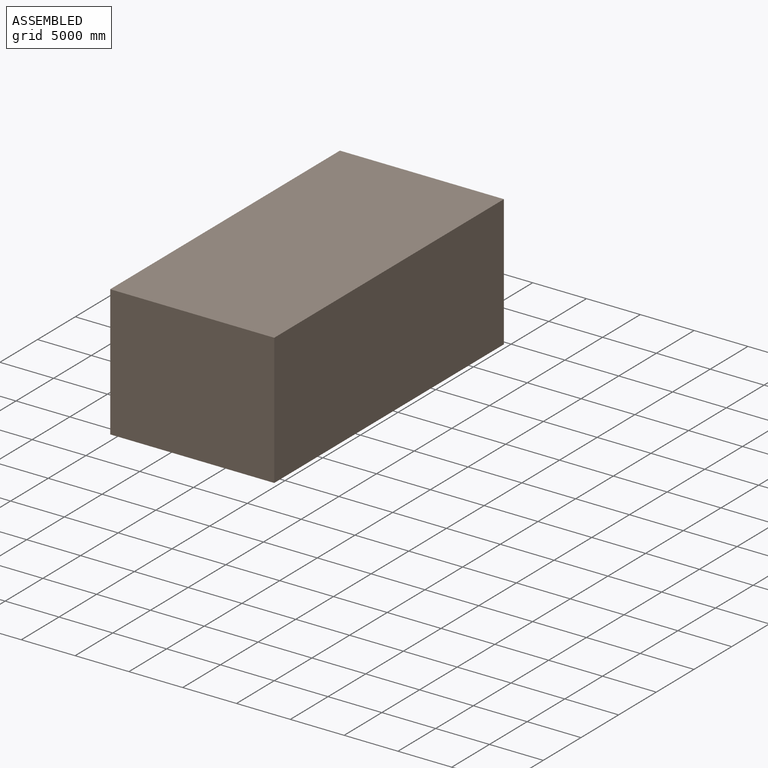
[diagram: assembled view]
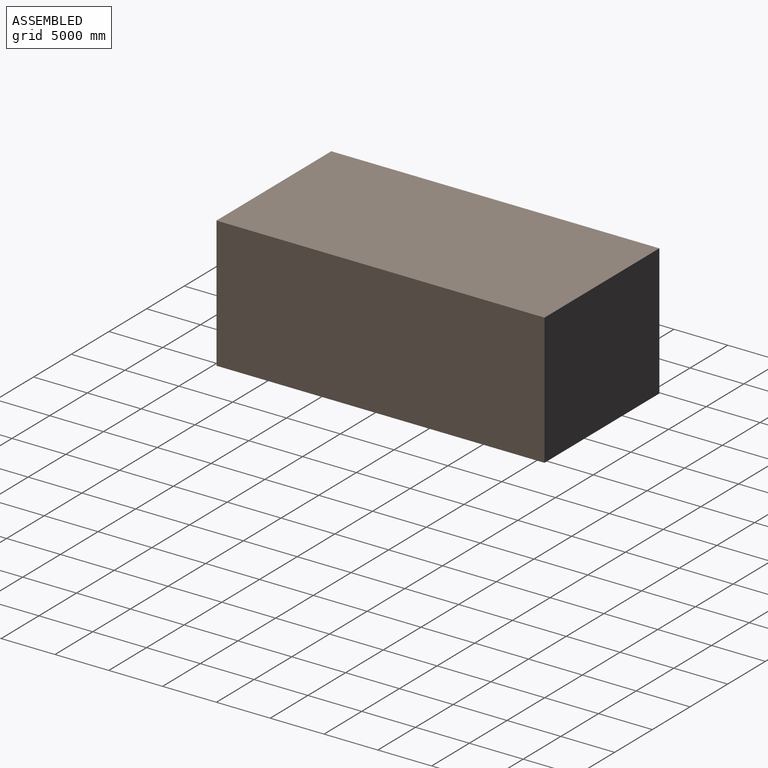
[diagram: assembled view, second angle]
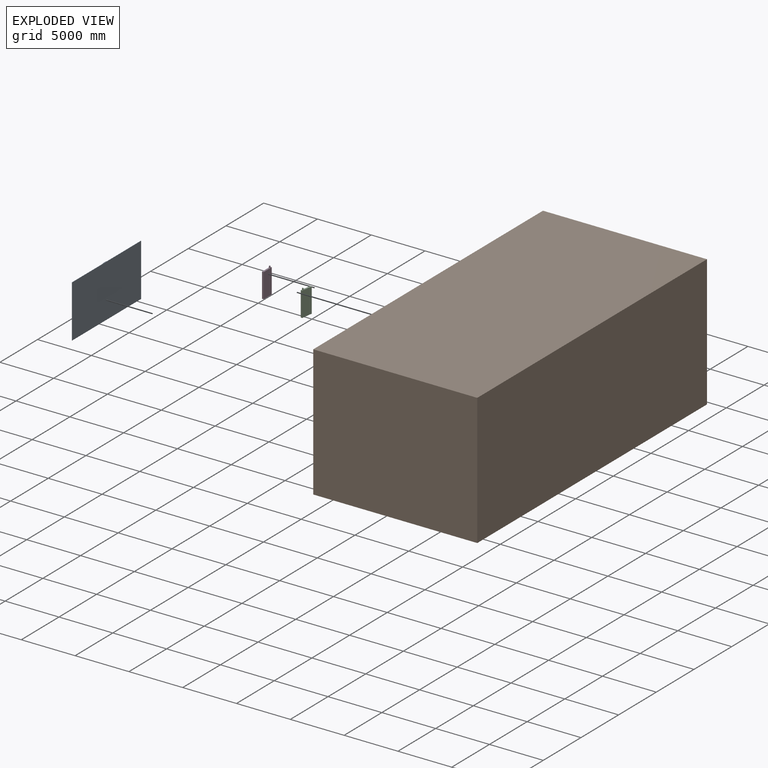
[diagram: exploded view]
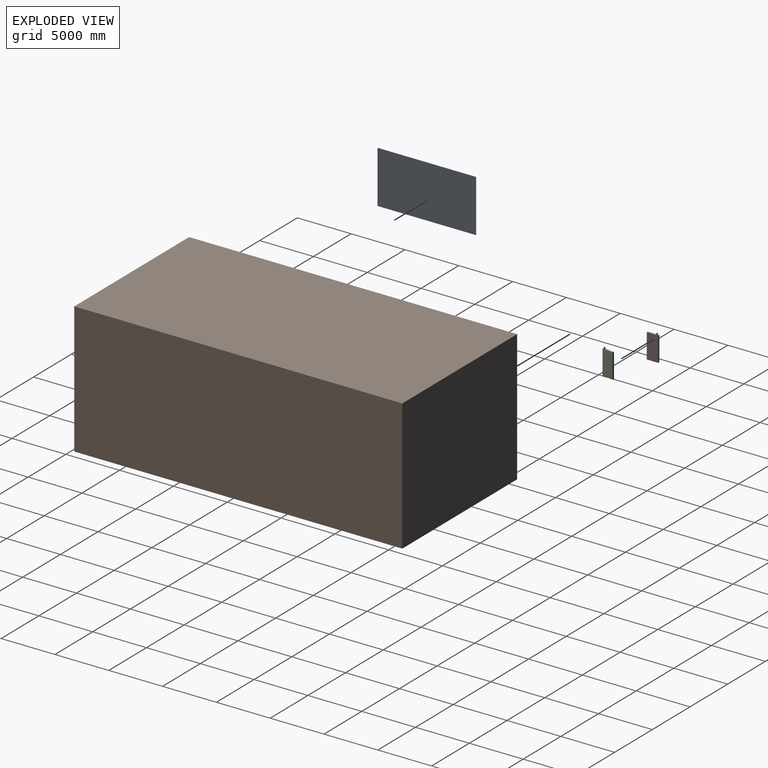
[diagram: exploded view, second angle]
ASSEMBLY  parts=4 mates=3
PART A: 34 faces, bbox 9144x182.9x4876.8 mm
  f0: plane 3048x152.4mm, normal (0,0,-1), area 464515.2mm2, adj f1,f2,f3
  f1: cylinder r=1524mm len=3048mm, axis (0,1,0), area 729658.8mm2, adj f0,f2,f3
  f2: plane 3048x1524mm, normal (0,-1,0), area 3648293.8mm2, adj f0,f1
  f3: plane 9144x4876.8mm, normal (0,-1,0), area 34975994.1mm2, adj f0,f1,f4,f5,f6,f7,f9,f10
  f4: plane 457.2x152.4mm, normal (0,0,-1), area 69677.3mm2, adj f3,f5,f7,f8
  f5: plane 2590.8x152.4mm, normal (1,0,0), area 394837.9mm2, adj f3,f4,f6,f8
  f6: plane 457.2x152.4mm, normal (0,0,1), area 69677.3mm2, adj f3,f5,f7,f8
  f7: plane 2590.8x152.4mm, normal (-1,0,0), area 394837.9mm2, adj f3,f4,f6,f8
  f8: plane 2590.8x457.2mm, normal (0,-1,0), area 1184513.8mm2, adj f4,f5,f6,f7
  f9: plane 2085.1x1537.72mm, normal (-0.8,0,0.59), area 394837.9mm2, adj f3,f10,f12,f13
  f10: plane 367.96x271.36mm, normal (-0.59,0,-0.8), area 69677.3mm2, adj f3,f9,f11,f13
  f11: plane 2085.1x1537.72mm, normal (0.8,0,-0.59), area 394837.9mm2, adj f3,f10,f12,f13
  f12: plane 367.96x271.36mm, normal (0.59,0,0.8), area 69677.3mm2, adj f3,f9,f11,f13
  f13: plane 2356.47x1905.68mm, normal (0,-1,0), area 1184513.8mm2, adj f9,f10,f11,f12
  f14: plane 1884x1778.42mm, normal (-0.73,0,-0.69), area 394837.9mm2, adj f3,f15,f17,f18
  f15: plane 332.47x313.84mm, normal (0.69,0,-0.73), area 69677.3mm2, adj f3,f14,f16,f18
  f16: plane 1884x1778.42mm, normal (0.73,0,0.69), area 394837.9mm2, adj f3,f15,f17,f18
  f17: plane 332.47x313.84mm, normal (-0.69,0,0.73), area 69677.3mm2, adj f3,f14,f16,f18
  f18: plane 2197.84x2110.89mm, normal (0,-1,0), area 1184513.8mm2, adj f14,f15,f16,f17
  f19: plane 2376.55x1031.62mm, normal (-0.4,0,-0.92), area 394837.9mm2, adj f3,f20,f22,f23
  f20: plane 419.39x182.05mm, normal (0.92,0,-0.4), area 69677.3mm2, adj f3,f19,f21,f23
  f21: plane 2376.55x1031.62mm, normal (0.4,0,0.92), area 394837.9mm2, adj f3,f20,f22,f23
  f22: plane 419.39x182.05mm, normal (-0.92,0,0.4), area 69677.3mm2, adj f3,f19,f21,f23
  f23: plane 2558.6x1451.01mm, normal (0,-1,0), area 1184513.8mm2, adj f19,f20,f21,f22
  f24: plane 2315.44x1162.32mm, normal (-0.45,0,0.89), area 394837.9mm2, adj f3,f25,f27,f28
  f25: plane 424.68x213.19mm, normal (-0.89,0,-0.45), area 72418.6mm2, adj f3,f24,f26,f28
  f26: plane 2315.44x1162.32mm, normal (0.45,0,-0.89), area 394837.9mm2, adj f3,f25,f27,f28
  f27: plane 424.68x213.19mm, normal (0.89,0,0.45), area 72418.6mm2, adj f3,f24,f26,f28
  f28: plane 2528.62x1587.01mm, normal (0,-1,0), area 1231116.3mm2, adj f24,f25,f26,f27
  f29: plane 9144x30.48mm, normal (0,0,1), area 278709.1mm2, adj f3,f30,f32,f33
  f30: plane 4876.8x30.48mm, normal (1,0,0), area 148644.9mm2, adj f3,f29,f31,f33
  f31: plane 9144x30.48mm, normal (0,0,-1), area 278709.1mm2, adj f3,f30,f32,f33
  f32: plane 4876.8x30.48mm, normal (-1,0,0), area 148644.9mm2, adj f3,f29,f31,f33
  f33: plane 9144x4876.8mm, normal (0,1,0), area 44593459.2mm2, adj f29,f30,f31,f32
PART B: 24 faces, bbox 15270.5x30480x12192 mm
  f0: plane 14935.2x11887.2mm, normal (0,-1,0), area 177537709.4mm2, adj f2,f9,f10,f14
  f1: plane 14935.2x11887.2mm, normal (0,1,0), area 177537709.4mm2, adj f2,f9,f10,f14
  f2: plane 30175.2x14935.2mm, normal (0,0,-1), area 450672647mm2, adj f0,f1,f9,f14
  f3: plane 30480x12192mm, normal (-1,0,0), area 324928382.4mm2, adj f5,f6,f7,f8,f10,f11,f12,f13
  f4: plane 30480x12192mm, normal (1,0,0), area 371612160mm2, adj f5,f6,f7,f8
  f5: plane 15240x12192mm, normal (0,1,0), area 185806080mm2, adj f3,f4,f7,f8
  f6: plane 15240x12192mm, normal (0,-1,0), area 185806080mm2, adj f3,f4,f7,f8
  f7: plane 30480x15240mm, normal (0,0,1), area 464515200mm2, adj f3,f4,f5,f6
  f8: plane 30480x15240mm, normal (0,0,-1), area 464515200mm2, adj f3,f4,f5,f6
  f9: plane 30175.2x11887.2mm, normal (-1,0,0), area 358698637.4mm2, adj f0,f1,f2,f10
  f10: plane 30175.2x15087.6mm, normal (0,0,1), area 450997807.7mm2, adj f0,f1,f3,f9,f11,f13,f14
  f11: plane 2286x152.4mm, normal (0,-1,0), area 348386.4mm2, adj f3,f10,f12,f14
  f12: plane 2133.6x152.4mm, normal (0,0,-1), area 301811.6mm2, adj f3,f11,f13,f14,f20,f22
  f13: plane 2286x152.4mm, normal (0,1,0), area 348386.4mm2, adj f3,f10,f12,f14
  f14: plane 30175.2x11887.2mm, normal (1,0,0), area 353821227.8mm2, adj f0,f1,f2,f10,f11,f12,f13
  f15: plane 4572x30.48mm, normal (0,-1,0), area 139354.6mm2, adj f3,f16,f18,f19
  f16: plane 9144x30.48mm, normal (0,0,1), area 278709.1mm2, adj f3,f15,f17,f19
  f17: plane 4572x30.48mm, normal (0,1,0), area 139354.6mm2, adj f3,f16,f18,f19
  f18: plane 9144x30.48mm, normal (0,0,-1), area 278709.1mm2, adj f3,f15,f17,f19
  f19: plane 9144x4572mm, normal (-1,0,0), area 41806368mm2, adj f15,f16,f17,f18
  f20: cylinder r=60.96mm len=152.4mm, axis (0,0,-1), area 58372.7mm2, adj f12,f21
  f21: plane 121.92x121.92mm, normal (0,0,-1), area 11674.5mm2, adj f20
  f22: cylinder r=60.96mm len=152.4mm, axis (0,0,-1), area 58372.7mm2, adj f12,f23
  f23: plane 121.92x121.92mm, normal (0,0,-1), area 11674.5mm2, adj f22
PART C: 16 faces, bbox 182.9x1066.8x2438.4 mm
  f0: plane 152.4x30.48mm, normal (0,-1,0), area 2415.5mm2, adj f1,f9,f11,f12,f13,f14,f15
  f1: plane 2286x1066.8mm, normal (-1,0,0), area 2437311.3mm2, adj f0,f2,f4,f5,f6,f9,f10,f11
  f2: plane 2286x152.4mm, normal (0,1,0), area 348386.4mm2, adj f1,f3,f5,f6
  f3: plane 2286x1066.8mm, normal (1,0,0), area 2438704.8mm2, adj f2,f4,f5,f6
  f4: plane 2286x152.4mm, normal (0,-1,0), area 348386.4mm2, adj f1,f3,f5,f6
  f5: plane 1066.8x152.4mm, normal (0,0,-1), area 162580.3mm2, adj f1,f2,f3,f4
  f6: plane 1066.8x152.4mm, normal (0,0,1), area 150905.8mm2, adj f1,f2,f3,f4,f7
  f7: cylinder r=60.96mm len=152.4mm, axis (0,0,1), area 58372.7mm2, adj f6,f8
  f8: plane 121.92x121.92mm, normal (0,0,1), area 11674.5mm2, adj f7
  f9: plane 45.72x30.48mm, normal (0,0,1), area 1393.5mm2, adj f0,f1,f10,f12
  f10: plane 152.4x30.48mm, normal (0,1,0), area 2415.5mm2, adj f1,f9,f11,f12,f13,f14,f15
  f11: plane 45.72x30.48mm, normal (0,0,-1), area 1393.5mm2, adj f0,f1,f10,f12
  f12: plane 152.4x45.72mm, normal (-1,0,0), area 6967.7mm2, adj f0,f9,f10,f11
  f13: plane 45.72x18.29mm, normal (0,0,-1), area 836.1mm2, adj f0,f1,f10,f15
  f14: plane 45.72x18.29mm, normal (0,0,1), area 836.1mm2, adj f0,f1,f10,f15
  f15: plane 121.92x45.72mm, normal (1,0,0), area 5574.2mm2, adj f0,f10,f13,f14
PART D: 16 faces, bbox 182.9x1066.8x2438.4 mm
  f0: plane 152.4x30.48mm, normal (0,1,0), area 2415.5mm2, adj f2,f10,f11,f12,f13,f14,f15
  f1: plane 152.4x30.48mm, normal (0,-1,0), area 2415.5mm2, adj f2,f10,f11,f12,f13,f14,f15
  f2: plane 2286x1066.8mm, normal (-1,0,0), area 2437311.3mm2, adj f0,f1,f5,f6,f8,f9,f10,f11
  f3: cylinder r=60.96mm len=152.4mm, axis (0,0,1), area 58372.7mm2, adj f4,f9
  f4: plane 121.92x121.92mm, normal (0,0,1), area 11674.5mm2, adj f3
  f5: plane 2286x152.4mm, normal (0,-1,0), area 348386.4mm2, adj f2,f7,f8,f9
  f6: plane 2286x152.4mm, normal (0,1,0), area 348386.4mm2, adj f2,f7,f8,f9
  f7: plane 2286x1066.8mm, normal (1,0,0), area 2438704.8mm2, adj f5,f6,f8,f9
  f8: plane 1066.8x152.4mm, normal (0,0,-1), area 162580.3mm2, adj f2,f5,f6,f7
  f9: plane 1066.8x152.4mm, normal (0,0,1), area 150905.8mm2, adj f2,f3,f5,f6,f7
  f10: plane 45.72x30.48mm, normal (0,0,-1), area 1393.5mm2, adj f0,f1,f2,f12
  f11: plane 45.72x30.48mm, normal (0,0,1), area 1393.5mm2, adj f0,f1,f2,f12
  f12: plane 152.4x45.72mm, normal (-1,0,0), area 6967.7mm2, adj f0,f1,f10,f11
  f13: plane 45.72x18.29mm, normal (0,0,-1), area 836.1mm2, adj f0,f1,f2,f15
  f14: plane 45.72x18.29mm, normal (0,0,1), area 836.1mm2, adj f0,f1,f2,f15
  f15: plane 121.92x45.72mm, normal (1,0,0), area 5574.2mm2, adj f0,f1,f13,f14
PLACE A rot(axis=(0,0,-1),90deg) t=(9128.01,864.28,5293.79)mm
PLACE B t=(16808.97,10339.62,-1245.62)mm fixed
PLACE C rot(axis=(0,0,-1),8.4deg) t=(15241.44,9349.81,-1245.62)mm
PLACE D t=(16808.97,10339.62,-1245.62)mm
MATE revolute D.f3 <-> B.f22  axis (0,0,1) through (9265.17,22379.22,1345.18)mm
MATE revolute C.f7 <-> B.f20  axis (0,0,1) through (9265.17,20550.42,1345.18)mm
MATE fastened A.f33 <-> B.f19  axis (1,0,0) through (9158.49,890.82,7441.18)mm
